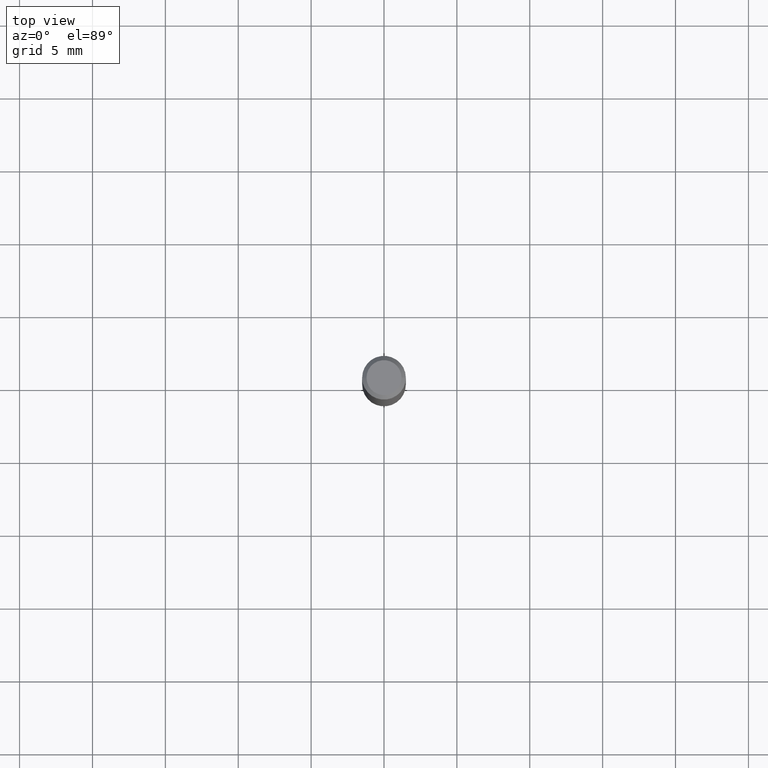
[diagram: clean part render]
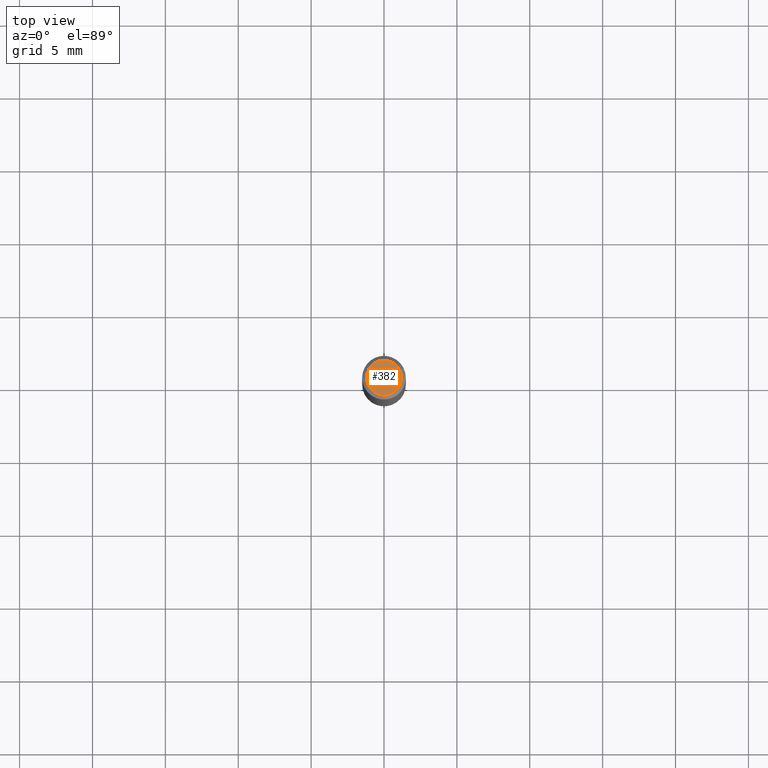
[diagram: same view with one face highlighted and labeled with its STEP entity id]
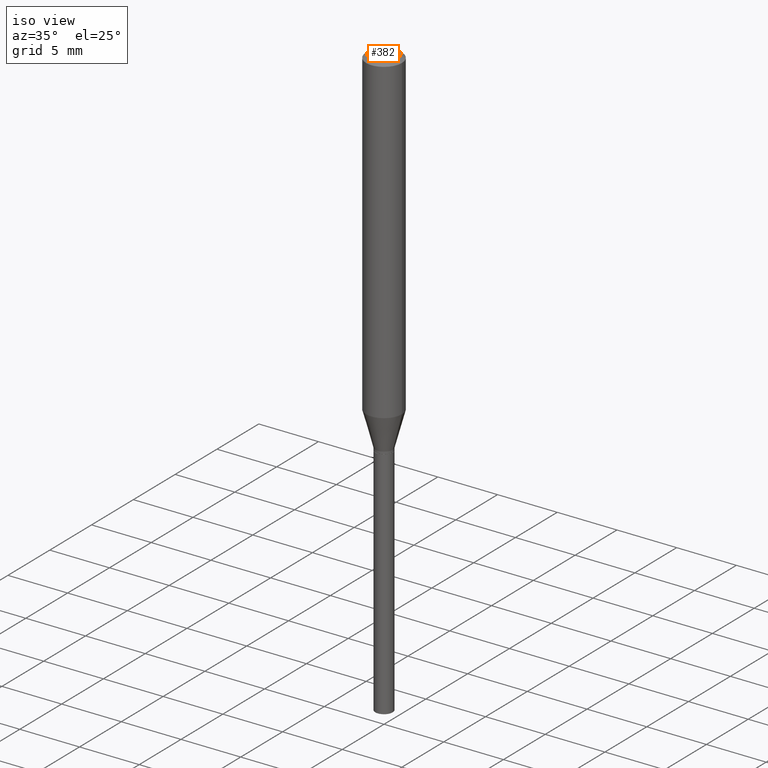
[diagram: same view with one face highlighted and labeled with its STEP entity id]
A machine part, top view. The second image highlights one B-rep face of the part: STEP entity #382.
A second angle (iso view) of the same face is appended — the face is thin or edge-on in the first view.
In plain terms, the highlighted planar face has unit normal (0, -0, -1).
Its self-contained STEP definition (entity closure, byte-faithful):
#1 = DIRECTION ( 'NONE',  ( 2.438088387897960049E-29, -3.491481338843145188E-15, -1.000000000000000000 ) ) ;
#39 = PLANE ( 'NONE',  #277 ) ;
#41 = VERTEX_POINT ( 'NONE', #461 ) ;
#74 = EDGE_LOOP ( 'NONE', ( #183, #111 ) ) ;
#93 = DIRECTION ( 'NONE',  ( -2.445468806185136597E-29, 3.491481338843145583E-15, 1.000000000000000000 ) ) ;
#111 = ORIENTED_EDGE ( 'NONE', *, *, #430, .T. ) ;
#157 = CIRCLE ( 'NONE', #267, 0.04724000000000000421 ) ;
#158 = EDGE_CURVE ( 'NONE', #229, #41, #157, .T. ) ;
#183 = ORIENTED_EDGE ( 'NONE', *, *, #158, .T. ) ;
#187 = CARTESIAN_POINT ( 'NONE',  ( 4.132873053354867254E-48, -5.900647395337818946E-34, -1.690012582823346072E-19 ) ) ;
#229 = VERTEX_POINT ( 'NONE', #340 ) ;
#245 = DIRECTION ( 'NONE',  ( 1.000000000000000000, -6.982962677686266711E-15, 4.876185090822587894E-29 ) ) ;
#267 = AXIS2_PLACEMENT_3D ( 'NONE', #374, #408, #289 ) ;
#277 = AXIS2_PLACEMENT_3D ( 'NONE', #187, #1, #421 ) ;
#289 = DIRECTION ( 'NONE',  ( 1.000000000000000000, -6.982962677686266711E-15, 4.876185090822587894E-29 ) ) ;
#340 = CARTESIAN_POINT ( 'NONE',  ( -0.04724000000000000421, 3.504923541997677355E-16, -3.380025165670481712E-19 ) ) ;
#355 = CARTESIAN_POINT ( 'NONE',  ( 8.265746106709734507E-48, -1.180129479067563789E-33, -3.380025165646692144E-19 ) ) ;
#374 = CARTESIAN_POINT ( 'NONE',  ( 8.265746106709734507E-48, -1.180129479067563789E-33, -3.380025165646692144E-19 ) ) ;
#380 = FACE_OUTER_BOUND ( 'NONE', #74, .T. ) ;
#382 = ADVANCED_FACE ( 'NONE', ( #380 ), #39, .F. ) ;
#389 = CIRCLE ( 'NONE', #434, 0.04724000000000000421 ) ;
#408 = DIRECTION ( 'NONE',  ( -2.445468806185136597E-29, 3.491481338843145583E-15, 1.000000000000000000 ) ) ;
#421 = DIRECTION ( 'NONE',  ( -1.000000000000000000, 6.982962677686265922E-15, -4.876176775795935793E-29 ) ) ;
#430 = EDGE_CURVE ( 'NONE', #41, #229, #389, .T. ) ;
#434 = AXIS2_PLACEMENT_3D ( 'NONE', #355, #93, #245 ) ;
#461 = CARTESIAN_POINT ( 'NONE',  ( 0.04724000000000000421, -3.852183633974369345E-16, -3.380025165621689721E-19 ) ) ;